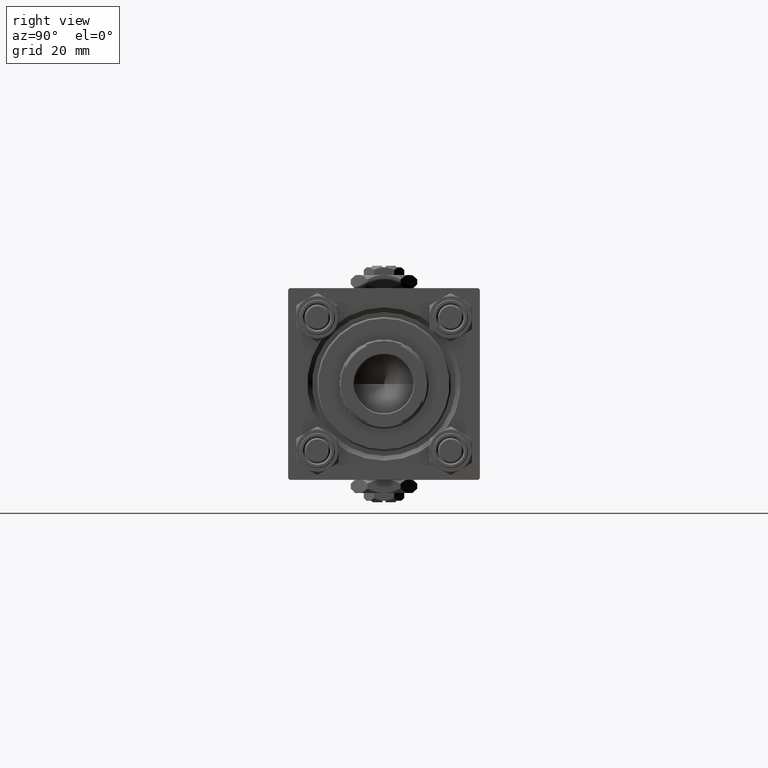
[diagram: clean part render]
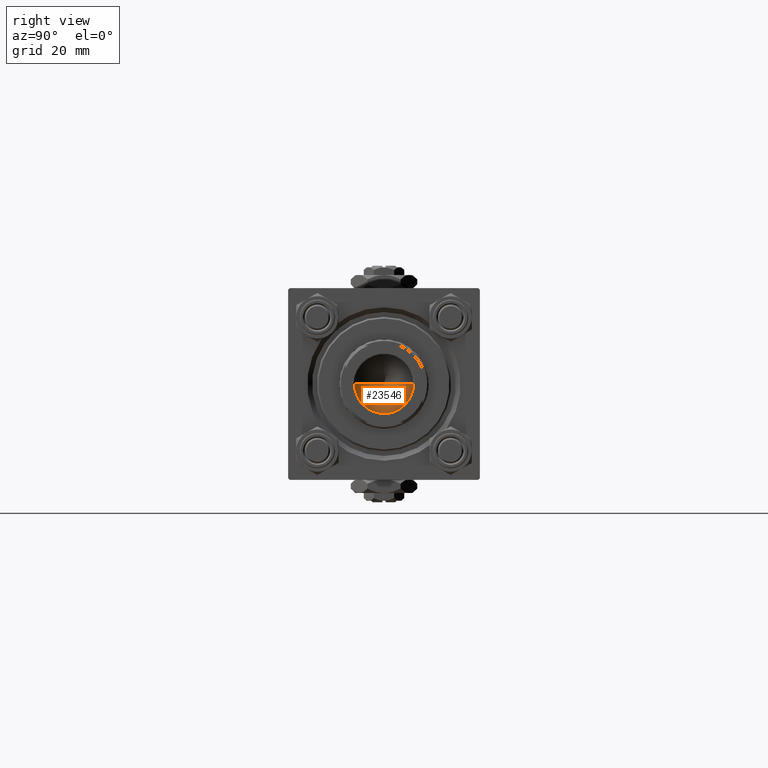
[diagram: same view with one face highlighted and labeled with its STEP entity id]
A machine part, right view. The second image highlights one B-rep face of the part: STEP entity #23546.
In plain terms, the highlighted conical surface has half-angle 59 deg.
Its self-contained STEP definition (entity closure, byte-faithful):
#122 = VERTEX_POINT ( 'NONE', #8209 ) ;
#312 = CONICAL_SURFACE ( 'NONE', #47329, 9.249999999999992895, 1.029744258676653423 ) ;
#1269 = VERTEX_POINT ( 'NONE', #34196 ) ;
#1778 = ORIENTED_EDGE ( 'NONE', *, *, #27669, .T. ) ;
#2142 = VECTOR ( 'NONE', #50896, 1000.000000000000000 ) ;
#6520 = FACE_OUTER_BOUND ( 'NONE', #39053, .T. ) ;
#7066 = CIRCLE ( 'NONE', #8751, 9.249999999999992895 ) ;
#8209 = CARTESIAN_POINT ( 'NONE',  ( -9.769621978240258809E-15, 0.000000000000000000, 95.44203927399506426 ) ) ;
#8751 = AXIS2_PLACEMENT_3D ( 'NONE', #45492, #29746, #21612 ) ;
#10204 = DIRECTION ( 'NONE',  ( -0.000000000000000000, -0.000000000000000000, 1.000000000000000000 ) ) ;
#11153 = LINE ( 'NONE', #36082, #32979 ) ;
#16527 = ORIENTED_EDGE ( 'NONE', *, *, #44266, .T. ) ;
#19383 = LINE ( 'NONE', #30953, #2142 ) ;
#21612 = DIRECTION ( 'NONE',  ( 1.000000000000000000, 0.000000000000000000, 0.000000000000000000 ) ) ;
#22007 = EDGE_CURVE ( 'NONE', #122, #1269, #11153, .T. ) ;
#23546 = ADVANCED_FACE ( 'NONE', ( #6520 ), #312, .F. ) ;
#25835 = ORIENTED_EDGE ( 'NONE', *, *, #22007, .F. ) ;
#26288 = VERTEX_POINT ( 'NONE', #34797 ) ;
#27669 = EDGE_CURVE ( 'NONE', #26288, #1269, #7066, .T. ) ;
#27941 = DIRECTION ( 'NONE',  ( -0.8571673007021117785, 1.049727191138617956E-16, 0.5150380749100550437 ) ) ;
#29746 = DIRECTION ( 'NONE',  ( -0.000000000000000000, -0.000000000000000000, 1.000000000000000000 ) ) ;
#30953 = CARTESIAN_POINT ( 'NONE',  ( 9.249999999999992895, 0.000000000000000000, 101.0000000000000000 ) ) ;
#32979 = VECTOR ( 'NONE', #27941, 1000.000000000000000 ) ;
#34196 = CARTESIAN_POINT ( 'NONE',  ( -9.249999999999992895, 1.132798289211300712E-15, 101.0000000000000000 ) ) ;
#34797 = CARTESIAN_POINT ( 'NONE',  ( 9.249999999999992895, 0.000000000000000000, 101.0000000000000000 ) ) ;
#36082 = CARTESIAN_POINT ( 'NONE',  ( -9.249999999999992895, 1.132798289211300712E-15, 101.0000000000000000 ) ) ;
#37522 = DIRECTION ( 'NONE',  ( 1.000000000000000000, 0.000000000000000000, 0.000000000000000000 ) ) ;
#39053 = EDGE_LOOP ( 'NONE', ( #25835, #16527, #1778 ) ) ;
#44266 = EDGE_CURVE ( 'NONE', #122, #26288, #19383, .T. ) ;
#45492 = CARTESIAN_POINT ( 'NONE',  ( 0.000000000000000000, 0.000000000000000000, 101.0000000000000000 ) ) ;
#47329 = AXIS2_PLACEMENT_3D ( 'NONE', #49849, #10204, #37522 ) ;
#49849 = CARTESIAN_POINT ( 'NONE',  ( 0.000000000000000000, 0.000000000000000000, 101.0000000000000000 ) ) ;
#50896 = DIRECTION ( 'NONE',  ( 0.8571673007021117785, 0.000000000000000000, 0.5150380749100550437 ) ) ;